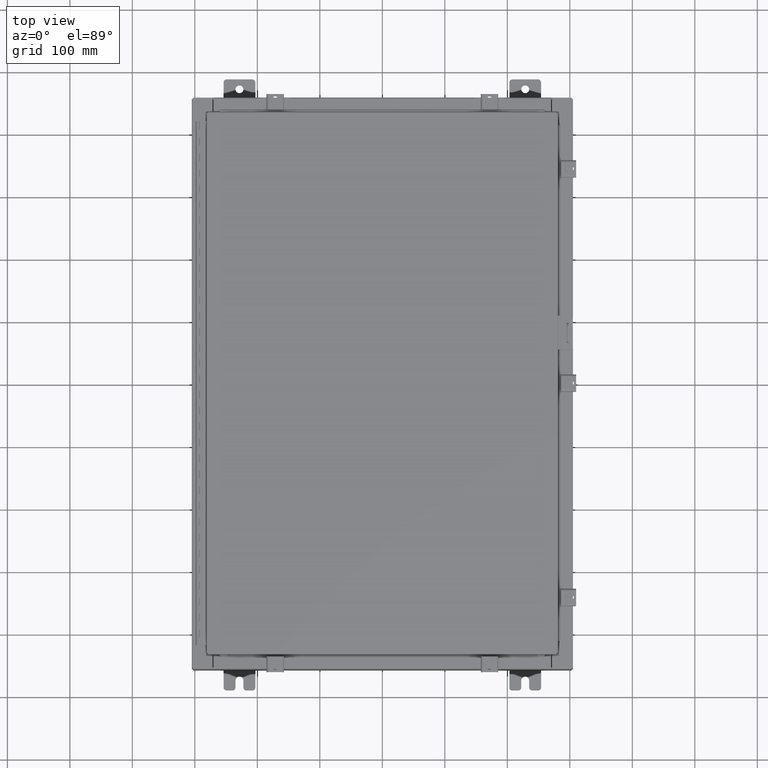
[diagram: clean part render]
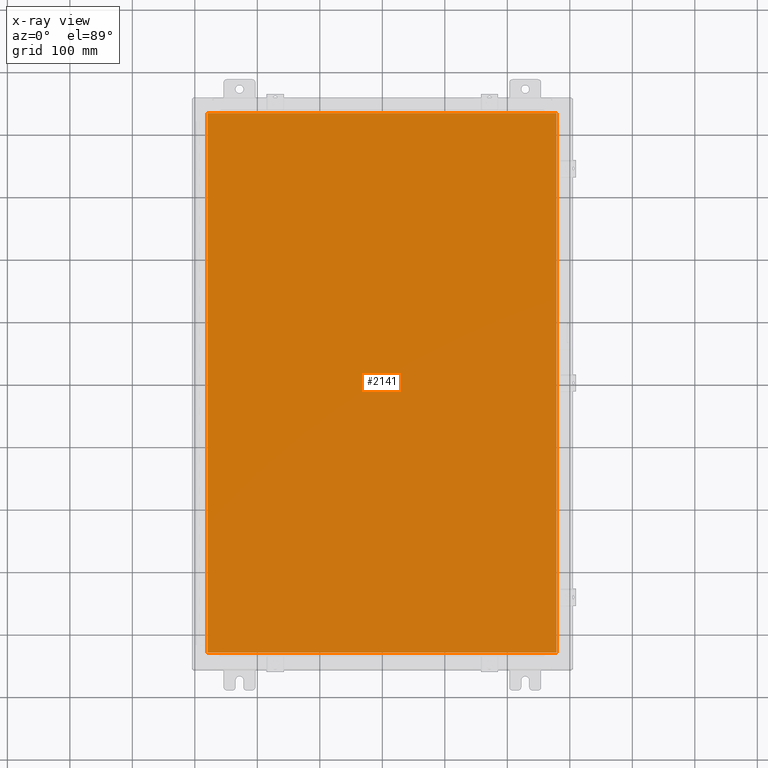
[diagram: x-ray — body ghosted, one internal face saturated and labeled with its STEP entity id]
A machine part, top view, then the same camera in x-ray: the body is ghosted and one INTERNAL B-rep face — a face not visible from any outside direction — is saturated and labeled: STEP entity #2141.
In plain terms, the highlighted planar face has unit normal (0, 0, -1).
Its self-contained STEP definition (entity closure, byte-faithful):
#320 = DIRECTION ( 'NONE',  ( -1.000000000000000000, -0.0000000000000000000, -0.0000000000000000000 ) ) ;
#1262 = VECTOR ( 'NONE', #7133, 39.37007874015748100 ) ;
#2141 = ADVANCED_FACE ( 'NONE', ( #22065 ), #32883, .T. ) ;
#2491 = EDGE_CURVE ( 'NONE', #28759, #13866, #7547, .T. ) ;
#2789 = ORIENTED_EDGE ( 'NONE', *, *, #22900, .F. ) ;
#4740 = VERTEX_POINT ( 'NONE', #22273 ) ;
#6712 = CARTESIAN_POINT ( 'NONE',  ( 10.99029999999999800, 17.00630000000000700, -0.07470000000000019700 ) ) ;
#7133 = DIRECTION ( 'NONE',  ( 1.000000000000000000, -0.0000000000000000000, -0.0000000000000000000 ) ) ;
#7547 = LINE ( 'NONE', #27346, #32507 ) ;
#8418 = VECTOR ( 'NONE', #20368, 39.37007874015748100 ) ;
#10414 = VECTOR ( 'NONE', #320, 39.37007874015748100 ) ;
#13624 = CARTESIAN_POINT ( 'NONE',  ( -10.99030000000000000, -17.00629999999999600, -0.07470000000000000300 ) ) ;
#13713 = CARTESIAN_POINT ( 'NONE',  ( -10.99030000000000000, -17.00629999999999600, -0.07469999999999910000 ) ) ;
#13866 = VERTEX_POINT ( 'NONE', #25817 ) ;
#14850 = CARTESIAN_POINT ( 'NONE',  ( 0.0000000000000000000, 0.0000000000000000000, -0.07470000000000000300 ) ) ;
#16480 = DIRECTION ( 'NONE',  ( 0.0000000000000000000, 1.000000000000000000, 0.0000000000000000000 ) ) ;
#20084 = LINE ( 'NONE', #6712, #10414 ) ;
#20368 = DIRECTION ( 'NONE',  ( 0.0000000000000000000, -1.000000000000000000, 0.0000000000000000000 ) ) ;
#21608 = EDGE_LOOP ( 'NONE', ( #37437, #41774, #2789, #30000 ) ) ;
#21933 = VERTEX_POINT ( 'NONE', #13624 ) ;
#22065 = FACE_OUTER_BOUND ( 'NONE', #21608, .T. ) ;
#22273 = CARTESIAN_POINT ( 'NONE',  ( -10.99030000000000100, 17.00630000000000700, -0.07470000000000000300 ) ) ;
#22900 = EDGE_CURVE ( 'NONE', #4740, #21933, #26704, .T. ) ;
#23308 = EDGE_CURVE ( 'NONE', #13866, #4740, #20084, .T. ) ;
#25817 = CARTESIAN_POINT ( 'NONE',  ( 10.99029999999999600, 17.00630000000000700, -0.07470000000000000300 ) ) ;
#26704 = LINE ( 'NONE', #36599, #8418 ) ;
#27346 = CARTESIAN_POINT ( 'NONE',  ( 10.99029999999999600, -17.00629999999999200, -0.07470000000000019700 ) ) ;
#28759 = VERTEX_POINT ( 'NONE', #37390 ) ;
#30000 = ORIENTED_EDGE ( 'NONE', *, *, #23308, .F. ) ;
#31425 = DIRECTION ( 'NONE',  ( -1.000000000000000000, 0.0000000000000000000, -0.0000000000000000000 ) ) ;
#32387 = AXIS2_PLACEMENT_3D ( 'NONE', #14850, #36995, #31425 ) ;
#32507 = VECTOR ( 'NONE', #16480, 39.37007874015748100 ) ;
#32883 = PLANE ( 'NONE',  #32387 ) ;
#34865 = LINE ( 'NONE', #13713, #1262 ) ;
#36013 = EDGE_CURVE ( 'NONE', #21933, #28759, #34865, .T. ) ;
#36599 = CARTESIAN_POINT ( 'NONE',  ( -10.99030000000000500, 17.00630000000000700, -0.07470000000000347200 ) ) ;
#36995 = DIRECTION ( 'NONE',  ( 0.0000000000000000000, 0.0000000000000000000, -1.000000000000000000 ) ) ;
#37390 = CARTESIAN_POINT ( 'NONE',  ( 10.99029999999999600, -17.00629999999999600, -0.07470000000000000300 ) ) ;
#37437 = ORIENTED_EDGE ( 'NONE', *, *, #2491, .F. ) ;
#41774 = ORIENTED_EDGE ( 'NONE', *, *, #36013, .F. ) ;